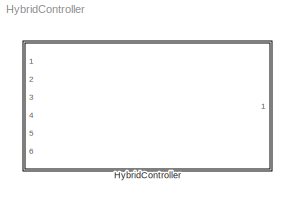
MODEL HybridController
KIND model
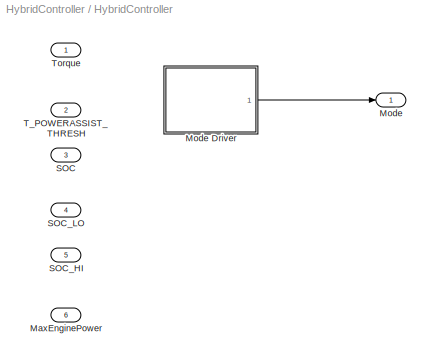
BLOCK [SubSystem] HybridController
  FunctionWithSeparateData = off
  MaskHideContents = off
  MinAlgLoopOccurrences = off
  Opaque = off
  Ports = [6, 1]
  PropExecContextOutsideSubsystem = off
  RTWSystemCode = Auto
  RequestExecContextInheritance = off
  SID = 1
BLOCK [Inport] HybridController/MaxEnginePower
  IconDisplay = Port number
  Port = 6
  SID = 9
BLOCK [Outport] HybridController/Mode
  IconDisplay = Port number
  SID = 3
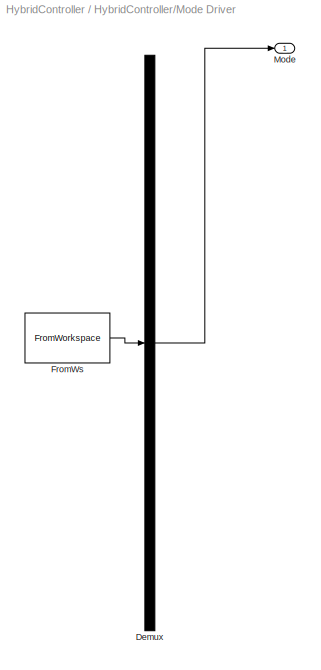
BLOCK [SubSystem] HybridController/Mode Driver
  ClipboardFcn = sigbuilder_block('clipboard');
  CloseFcn = sigbuilder_block('close');
  CopyFcn = sigbuilder_block('copy');
  DeleteFcn = sigbuilder_block('delete');
  FunctionWithSeparateData = off
  LoadFcn = sigbuilder_block('load');
  MaskCapabilities = slmaskedcaps(gcbh)
  MaskDescription = Create and generate interchangeable groups of signals whose waveforms are piecewise linear.
  MaskDisplay = plot(0,0,100,100,[10,10,40,40,10],[80,20,20,80,80],[40,10],[50,50], [40,27,10],[65,72,56],[40,25,25,10],[28,28,43,43]);
  MaskHideContents = on
  MaskIconFrame = on
  MaskIconOpaque = off
  MaskIconRotate = port
  MaskIconUnits = autoscale
  MaskInitialization = if ~strcmp(get_param(bdroot(gcbh),'SimulationStatus'),'stopped') tuvar = sigbuilder_block('maskInit'); end
  MaskPortRotate = default
  MaskSelfModifiable = on
  MaskType = Sigbuilder block
  MinAlgLoopOccurrences = off
  ModelCloseFcn = sigbuilder_block('modelClose');
  NameChangeFcn = sigbuilder_block('namechange');
  Opaque = off
  OpenFcn = sigbuilder_block('open',[164.483 25.4483 970.138 502.759 ]);
  Ports = [0, 1]
  PreSaveFcn = sigbuilder_block('preSave');
  PropExecContextOutsideSubsystem = off
  RTWSystemCode = Auto
  RequestExecContextInheritance = off
  SID = 2
  StartFcn = sigbuilder_block('start');
  StopFcn = sigbuilder_block('stop');
  Tag = STV Subsys
BLOCK [Demux] HybridController/Mode Driver/Demux
  Outputs = 1
  Ports = [1, 1]
  SID = 2:1
  Tag = STV Demux
BLOCK [FromWorkspace] HybridController/Mode Driver/FromWs
  SID = 2:2
  SampleTime = 0
  SigBuilderData = DataTag0
  Tag = STV FromWs
  VariableName = tuvar
  VnvData = DataTag1
  ZeroCross = on
BLOCK [Outport] HybridController/Mode Driver/Mode
  IconDisplay = Port number
  SID = 2:3
  Tag = STV Outport
BLOCK [Inport] HybridController/SOC
  IconDisplay = Port number
  Port = 3
  SID = 6
BLOCK [Inport] HybridController/SOC_HI
  IconDisplay = Port number
  Port = 5
  SID = 8
BLOCK [Inport] HybridController/SOC_LO
  IconDisplay = Port number
  Port = 4
  SID = 7
BLOCK [Inport] HybridController/T_POWERASSIST_THRESH
  IconDisplay = Port number
  Port = 2
  SID = 5
BLOCK [Inport] HybridController/Torque
  IconDisplay = Port number
  SID = 4
LINE HybridController/Mode Driver/Demux:1 -> HybridController/Mode Driver/Mode:1
LINE HybridController/Mode Driver/FromWs:1 -> HybridController/Mode Driver/Demux:1
LINE HybridController/Mode Driver:1 -> HybridController/Mode:1
